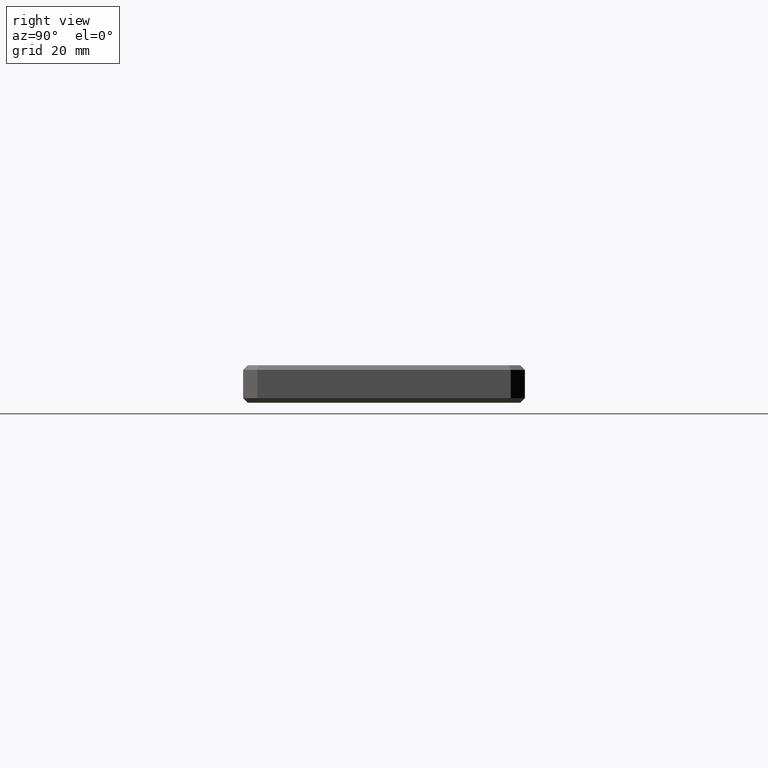
[diagram: clean part render]
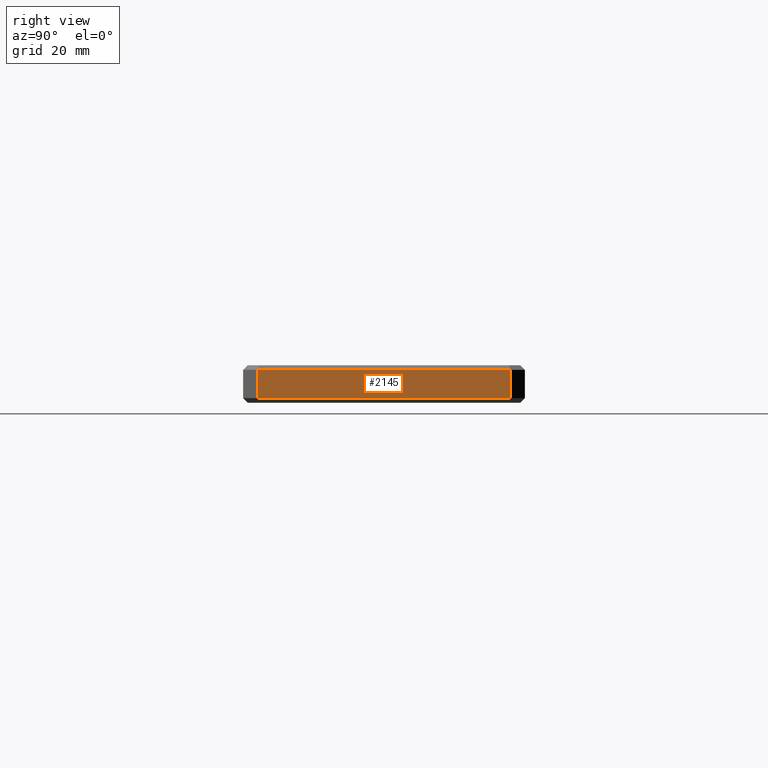
[diagram: same view with one face highlighted and labeled with its STEP entity id]
A machine part, right view. The second image highlights one B-rep face of the part: STEP entity #2145.
In plain terms, the highlighted planar face has unit normal (1, 0, -0).
Its self-contained STEP definition (entity closure, byte-faithful):
#217 = EDGE_LOOP ( 'NONE', ( #2661, #2768, #1652, #3616 ) ) ;
#242 = DIRECTION ( 'NONE',  ( 0.0000000000000000000, 1.000000000000000000, 0.0000000000000000000 ) ) ;
#273 = AXIS2_PLACEMENT_3D ( 'NONE', #1759, #2865, #2289 ) ;
#300 = EDGE_CURVE ( 'NONE', #2852, #1351, #1840, .T. ) ;
#541 = LINE ( 'NONE', #2760, #1713 ) ;
#647 = PLANE ( 'NONE',  #273 ) ;
#813 = VECTOR ( 'NONE', #1517, 1000.000000000000000 ) ;
#1005 = CARTESIAN_POINT ( 'NONE',  ( 113.4999999999999858, 26.99999999999998224, -1.000000000000014655 ) ) ;
#1182 = VERTEX_POINT ( 'NONE', #3113 ) ;
#1351 = VERTEX_POINT ( 'NONE', #1005 ) ;
#1517 = DIRECTION ( 'NONE',  ( 0.0000000000000000000, 0.0000000000000000000, 1.000000000000000000 ) ) ;
#1526 = LINE ( 'NONE', #2627, #3209 ) ;
#1629 = LINE ( 'NONE', #1919, #2680 ) ;
#1652 = ORIENTED_EDGE ( 'NONE', *, *, #2773, .T. ) ;
#1713 = VECTOR ( 'NONE', #242, 1000.000000000000000 ) ;
#1759 = CARTESIAN_POINT ( 'NONE',  ( 113.4999999999999858, 30.00000000000000000, -8.000000000000000000 ) ) ;
#1840 = LINE ( 'NONE', #2370, #813 ) ;
#1881 = VERTEX_POINT ( 'NONE', #2667 ) ;
#1919 = CARTESIAN_POINT ( 'NONE',  ( 113.4999999999999858, -26.99999999999995381, -8.000000000000000000 ) ) ;
#2145 = ADVANCED_FACE ( 'NONE', ( #3302 ), #647, .T. ) ;
#2289 = DIRECTION ( 'NONE',  ( -0.0000000000000000000, 0.0000000000000000000, -1.000000000000000000 ) ) ;
#2370 = CARTESIAN_POINT ( 'NONE',  ( 113.4999999999999858, 26.99999999999998224, -8.000000000000000000 ) ) ;
#2627 = CARTESIAN_POINT ( 'NONE',  ( 113.4999999999999858, 30.00000000000000000, -1.000000000000014655 ) ) ;
#2661 = ORIENTED_EDGE ( 'NONE', *, *, #300, .T. ) ;
#2667 = CARTESIAN_POINT ( 'NONE',  ( 113.4999999999999858, -26.99999999999995381, -1.000000000000014655 ) ) ;
#2680 = VECTOR ( 'NONE', #2716, 1000.000000000000000 ) ;
#2716 = DIRECTION ( 'NONE',  ( 0.0000000000000000000, 0.0000000000000000000, -1.000000000000000000 ) ) ;
#2760 = CARTESIAN_POINT ( 'NONE',  ( 113.4999999999999858, 26.99999999999998224, -6.999999999999985789 ) ) ;
#2768 = ORIENTED_EDGE ( 'NONE', *, *, #3153, .T. ) ;
#2773 = EDGE_CURVE ( 'NONE', #1881, #1182, #1629, .T. ) ;
#2852 = VERTEX_POINT ( 'NONE', #3372 ) ;
#2865 = DIRECTION ( 'NONE',  ( 1.000000000000000000, 0.0000000000000000000, -0.0000000000000000000 ) ) ;
#3113 = CARTESIAN_POINT ( 'NONE',  ( 113.4999999999999858, -26.99999999999995381, -6.999999999999985789 ) ) ;
#3153 = EDGE_CURVE ( 'NONE', #1351, #1881, #1526, .T. ) ;
#3195 = DIRECTION ( 'NONE',  ( 0.0000000000000000000, -1.000000000000000000, 0.0000000000000000000 ) ) ;
#3209 = VECTOR ( 'NONE', #3195, 1000.000000000000000 ) ;
#3302 = FACE_OUTER_BOUND ( 'NONE', #217, .T. ) ;
#3372 = CARTESIAN_POINT ( 'NONE',  ( 113.4999999999999858, 26.99999999999998224, -6.999999999999986677 ) ) ;
#3525 = EDGE_CURVE ( 'NONE', #1182, #2852, #541, .T. ) ;
#3616 = ORIENTED_EDGE ( 'NONE', *, *, #3525, .T. ) ;